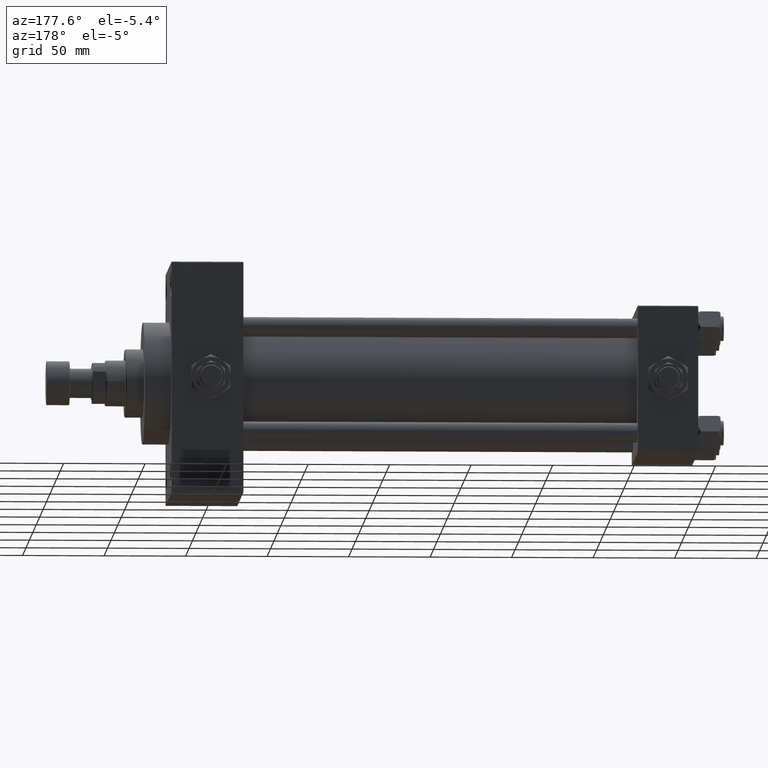
[diagram: clean part render]
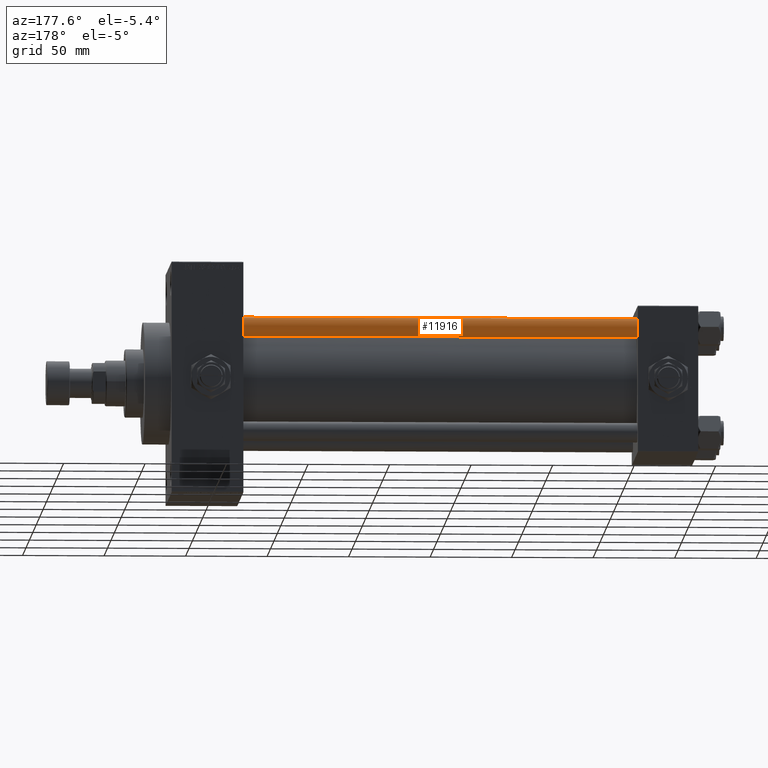
[diagram: same view with one face highlighted and labeled with its STEP entity id]
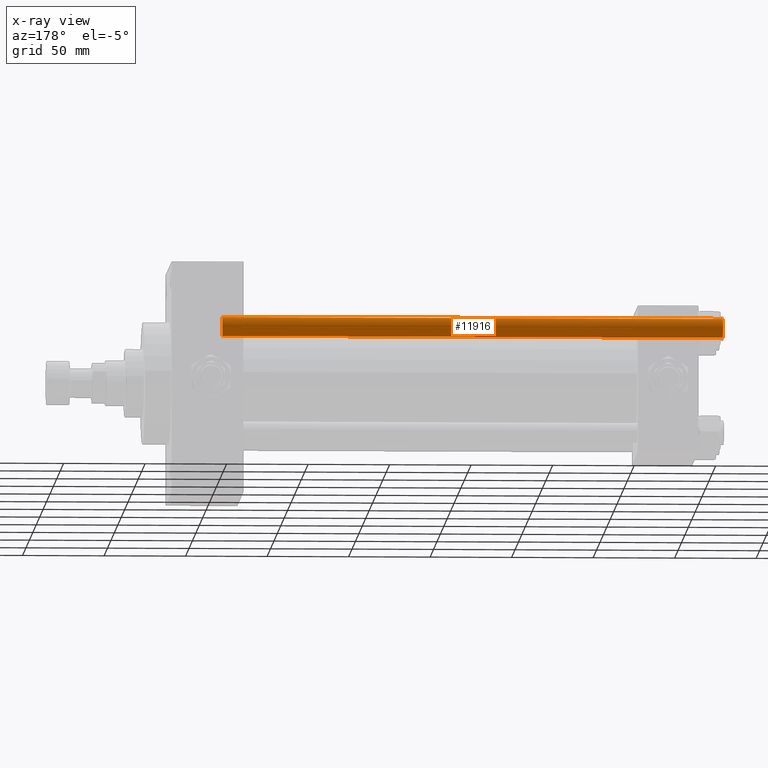
[diagram: x-ray of the same camera — body ghosted, the highlighted face saturated]
A machine part, auxiliary view. The second image highlights one B-rep face of the part: STEP entity #11916.
The next image is the same camera in x-ray: the body ghosted, the highlighted face saturated — about 0% of this face is hidden behind the body in this view.
In plain terms, the highlighted cylindrical surface (edge-blend (fillet) strip) has radius 6 mm, axis along (-1, -0, 0).
Its self-contained STEP definition (entity closure, byte-faithful):
#65 = DIRECTION ( 'NONE',  ( 1.000000000000000000, 0.000000000000000000, 0.000000000000000000 ) ) ;
#109 = ORIENTED_EDGE ( 'NONE', *, *, #42652, .T. ) ;
#151 = DIRECTION ( 'NONE',  ( 1.000000000000000000, 0.000000000000000000, 0.000000000000000000 ) ) ;
#238 = VERTEX_POINT ( 'NONE', #9621 ) ;
#1589 = ORIENTED_EDGE ( 'NONE', *, *, #7027, .F. ) ;
#2523 = VECTOR ( 'NONE', #8987, 1000.000000000000000 ) ;
#3272 = CIRCLE ( 'NONE', #13764, 6.000000000000000888 ) ;
#3691 = DIRECTION ( 'NONE',  ( 0.000000000000000000, 0.000000000000000000, -1.000000000000000000 ) ) ;
#3844 = ORIENTED_EDGE ( 'NONE', *, *, #4764, .T. ) ;
#4167 = DIRECTION ( 'NONE',  ( -0.000000000000000000, -0.000000000000000000, -1.000000000000000000 ) ) ;
#4764 = EDGE_CURVE ( 'NONE', #28153, #238, #40713, .T. ) ;
#5090 = VERTEX_POINT ( 'NONE', #35148 ) ;
#5357 = CIRCLE ( 'NONE', #25425, 6.000000000000000888 ) ;
#7027 = EDGE_CURVE ( 'NONE', #32555, #5090, #44849, .T. ) ;
#7445 = FACE_OUTER_BOUND ( 'NONE', #38125, .T. ) ;
#8987 = DIRECTION ( 'NONE',  ( -0.000000000000000000, -0.000000000000000000, -1.000000000000000000 ) ) ;
#9621 = CARTESIAN_POINT ( 'NONE',  ( 6.000000000000000888, 7.347880794884120722E-16, 0.5000000000000559552 ) ) ;
#11716 = CARTESIAN_POINT ( 'NONE',  ( 0.000000000000000000, 0.000000000000000000, 308.0000000000000000 ) ) ;
#11916 = ADVANCED_FACE ( 'NONE', ( #7445 ), #23040, .T. ) ;
#13764 = AXIS2_PLACEMENT_3D ( 'NONE', #30345, #3691, #151 ) ;
#15435 = DIRECTION ( 'NONE',  ( -0.000000000000000000, -0.000000000000000000, 1.000000000000000000 ) ) ;
#23040 = CYLINDRICAL_SURFACE ( 'NONE', #25970, 6.000000000000000888 ) ;
#25221 = CARTESIAN_POINT ( 'NONE',  ( 6.000000000000000888, 7.347880794884120722E-16, 307.4999999999999432 ) ) ;
#25425 = AXIS2_PLACEMENT_3D ( 'NONE', #33782, #15435, #65 ) ;
#25970 = AXIS2_PLACEMENT_3D ( 'NONE', #11716, #4167, #30560 ) ;
#27751 = EDGE_CURVE ( 'NONE', #32555, #28153, #3272, .T. ) ;
#28153 = VERTEX_POINT ( 'NONE', #25221 ) ;
#29144 = CARTESIAN_POINT ( 'NONE',  ( 6.000000000000000888, 7.347880794884120722E-16, 308.0000000000000000 ) ) ;
#30345 = CARTESIAN_POINT ( 'NONE',  ( 0.000000000000000000, 0.000000000000000000, 307.4999999999999432 ) ) ;
#30560 = DIRECTION ( 'NONE',  ( -1.000000000000000000, 0.000000000000000000, 0.000000000000000000 ) ) ;
#32555 = VERTEX_POINT ( 'NONE', #43354 ) ;
#33782 = CARTESIAN_POINT ( 'NONE',  ( 0.000000000000000000, 0.000000000000000000, 0.5000000000000559552 ) ) ;
#35148 = CARTESIAN_POINT ( 'NONE',  ( -6.000000000000000888, 0.000000000000000000, 0.5000000000000559552 ) ) ;
#37191 = DIRECTION ( 'NONE',  ( -0.000000000000000000, -0.000000000000000000, -1.000000000000000000 ) ) ;
#37861 = VECTOR ( 'NONE', #37191, 1000.000000000000000 ) ;
#38125 = EDGE_LOOP ( 'NONE', ( #43982, #3844, #109, #1589 ) ) ;
#40713 = LINE ( 'NONE', #29144, #37861 ) ;
#41334 = CARTESIAN_POINT ( 'NONE',  ( -6.000000000000000888, 0.000000000000000000, 308.0000000000000000 ) ) ;
#42652 = EDGE_CURVE ( 'NONE', #238, #5090, #5357, .T. ) ;
#43354 = CARTESIAN_POINT ( 'NONE',  ( -6.000000000000000888, 0.000000000000000000, 307.4999999999999432 ) ) ;
#43982 = ORIENTED_EDGE ( 'NONE', *, *, #27751, .T. ) ;
#44849 = LINE ( 'NONE', #41334, #2523 ) ;